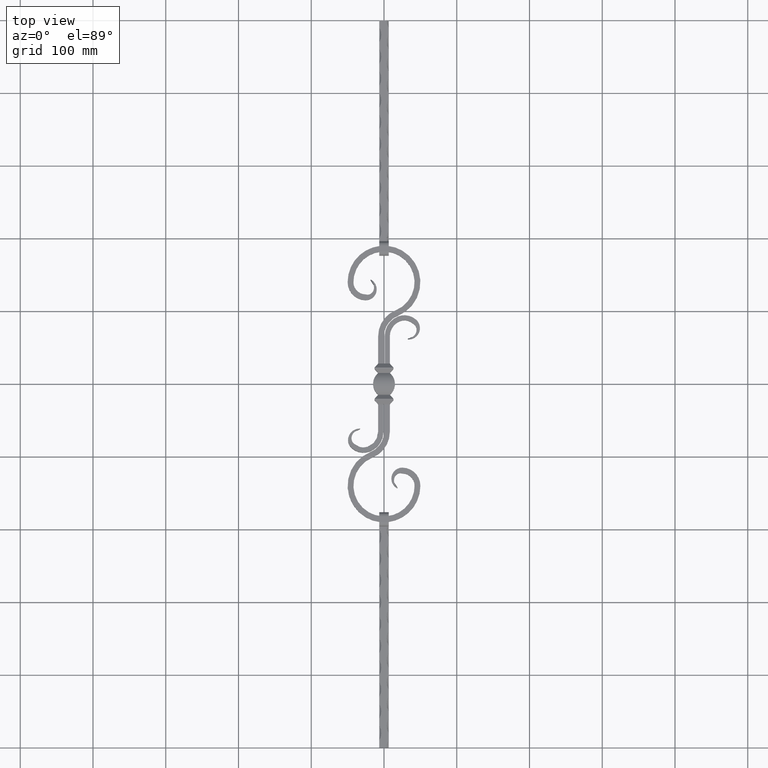
[diagram: clean part render]
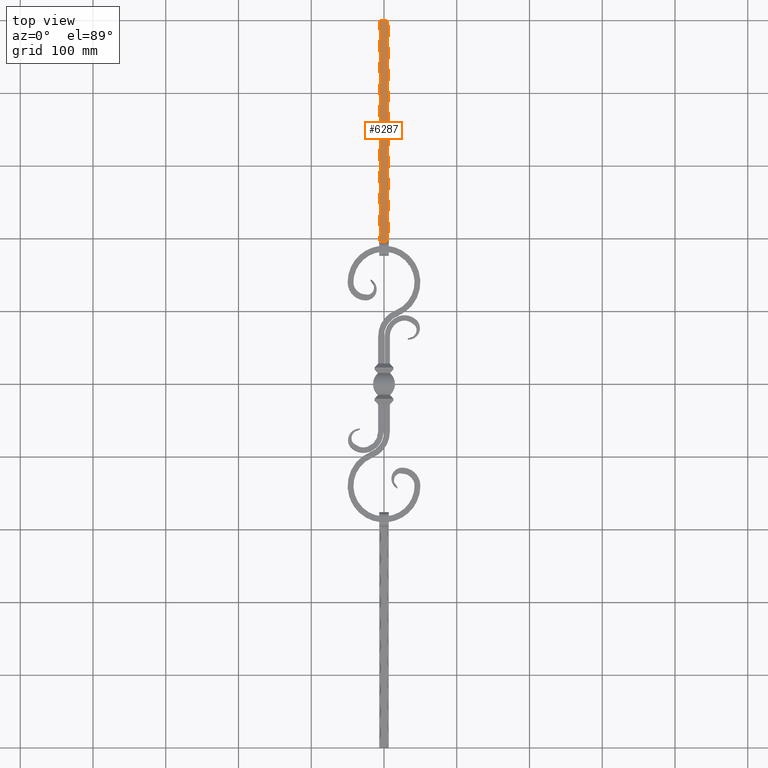
[diagram: same view with one face highlighted and labeled with its STEP entity id]
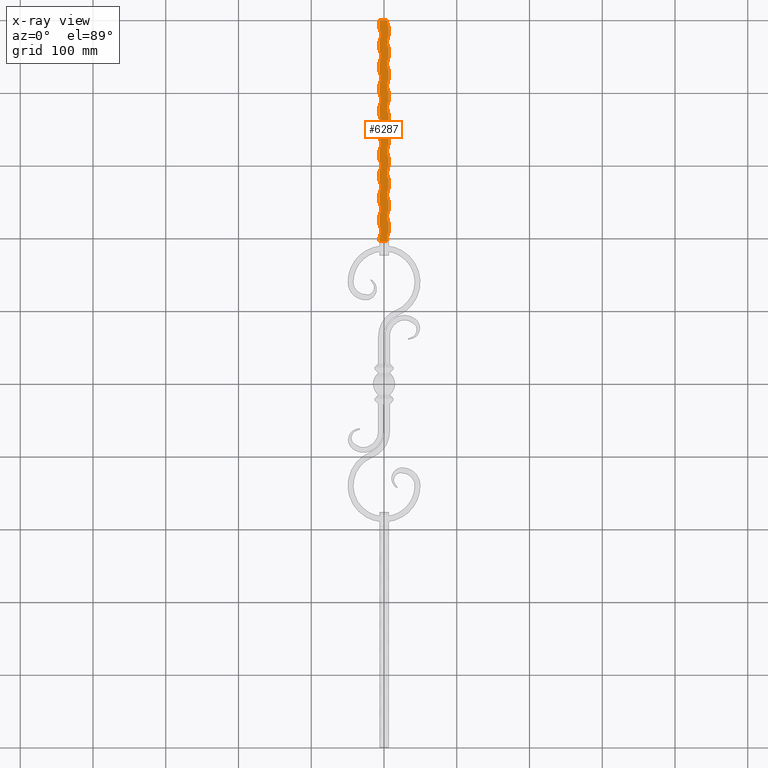
[diagram: x-ray of the same camera — body ghosted, the highlighted face saturated]
A machine part, top view. The second image highlights one B-rep face of the part: STEP entity #6287.
The next image is the same camera in x-ray: the body ghosted, the highlighted face saturated — about 0% of this face is hidden behind the body in this view.
In plain terms, the highlighted planar face has unit normal (0, 0, -1).
Its self-contained STEP definition (entity closure, byte-faithful):
#83 = VECTOR ( 'NONE', #8078, 1000.000000000000000 ) ;
#99 = EDGE_CURVE ( 'NONE', #12868, #7897, #2957, .T. ) ;
#128 = DIRECTION ( 'NONE',  ( -1.000000000000000000, 0.000000000000000000, 0.000000000000000000 ) ) ;
#136 = EDGE_CURVE ( 'NONE', #13893, #7193, #10007, .T. ) ;
#174 = CIRCLE ( 'NONE', #1761, 21.25000000000003197 ) ;
#213 = CARTESIAN_POINT ( 'NONE',  ( 25.25000000000002842, 199.9999999999999432, 6.500000000000000888 ) ) ;
#401 = CARTESIAN_POINT ( 'NONE',  ( -6.499999999999999112, 410.0000000000000000, 6.500000000000000888 ) ) ;
#567 = EDGE_CURVE ( 'NONE', #17401, #8542, #5588, .T. ) ;
#667 = CARTESIAN_POINT ( 'NONE',  ( 6.500000000000000888, 500.0000000000000000, 6.500000000000000888 ) ) ;
#780 = DIRECTION ( 'NONE',  ( -0.000000000000000000, -1.000000000000000000, -0.000000000000000000 ) ) ;
#791 = AXIS2_PLACEMENT_3D ( 'NONE', #14009, #1544, #15507 ) ;
#846 = VERTEX_POINT ( 'NONE', #13466 ) ;
#960 = ORIENTED_EDGE ( 'NONE', *, *, #5816, .T. ) ;
#975 = CARTESIAN_POINT ( 'NONE',  ( -6.499999999999999112, 350.0000000000000000, 6.500000000000000888 ) ) ;
#1040 = CARTESIAN_POINT ( 'NONE',  ( -6.499999999999999112, 500.0000000000000000, 6.500000000000000888 ) ) ;
#1049 = LINE ( 'NONE', #4456, #15667 ) ;
#1134 = DIRECTION ( 'NONE',  ( 0.000000000000000000, 0.000000000000000000, -1.000000000000000000 ) ) ;
#1149 = VERTEX_POINT ( 'NONE', #6142 ) ;
#1171 = DIRECTION ( 'NONE',  ( 0.000000000000000000, 0.000000000000000000, -1.000000000000000000 ) ) ;
#1236 = ORIENTED_EDGE ( 'NONE', *, *, #3574, .T. ) ;
#1241 = VERTEX_POINT ( 'NONE', #15136 ) ;
#1448 = CARTESIAN_POINT ( 'NONE',  ( 6.500000000000000888, 309.9999999999999432, 6.500000000000000888 ) ) ;
#1465 = DIRECTION ( 'NONE',  ( -0.000000000000000000, -1.000000000000000000, -0.000000000000000000 ) ) ;
#1483 = ORIENTED_EDGE ( 'NONE', *, *, #11207, .T. ) ;
#1498 = VERTEX_POINT ( 'NONE', #15806 ) ;
#1532 = DIRECTION ( 'NONE',  ( -0.000000000000000000, -1.000000000000000000, -0.000000000000000000 ) ) ;
#1544 = DIRECTION ( 'NONE',  ( 0.000000000000000000, 0.000000000000000000, -1.000000000000000000 ) ) ;
#1576 = DIRECTION ( 'NONE',  ( -1.000000000000000000, 0.000000000000000000, 0.000000000000000000 ) ) ;
#1584 = ORIENTED_EDGE ( 'NONE', *, *, #2970, .T. ) ;
#1606 = ORIENTED_EDGE ( 'NONE', *, *, #99, .T. ) ;
#1626 = VERTEX_POINT ( 'NONE', #15347 ) ;
#1667 = ORIENTED_EDGE ( 'NONE', *, *, #9790, .T. ) ;
#1727 = CARTESIAN_POINT ( 'NONE',  ( -6.499999999999999112, 290.0000000000000000, 6.500000000000000888 ) ) ;
#1731 = CARTESIAN_POINT ( 'NONE',  ( 6.500000000000000888, 300.0000000000000000, 6.500000000000000888 ) ) ;
#1761 = AXIS2_PLACEMENT_3D ( 'NONE', #4772, #7616, #4833 ) ;
#1773 = DIRECTION ( 'NONE',  ( -1.000000000000000000, 0.000000000000000000, 0.000000000000000000 ) ) ;
#1822 = VERTEX_POINT ( 'NONE', #13053 ) ;
#2011 = VERTEX_POINT ( 'NONE', #2064 ) ;
#2040 = CARTESIAN_POINT ( 'NONE',  ( -6.499999999999999112, 400.0000000000000000, 6.500000000000000888 ) ) ;
#2064 = CARTESIAN_POINT ( 'NONE',  ( 6.500000000000000888, 370.0000000000000000, 6.500000000000000888 ) ) ;
#2126 = AXIS2_PLACEMENT_3D ( 'NONE', #9651, #1171, #11027 ) ;
#2141 = ORIENTED_EDGE ( 'NONE', *, *, #2219, .F. ) ;
#2185 = PLANE ( 'NONE',  #10521 ) ;
#2204 = DIRECTION ( 'NONE',  ( -0.000000000000000000, -1.000000000000000000, -0.000000000000000000 ) ) ;
#2219 = EDGE_CURVE ( 'NONE', #7716, #7897, #6406, .T. ) ;
#2257 = VERTEX_POINT ( 'NONE', #2040 ) ;
#2271 = CARTESIAN_POINT ( 'NONE',  ( -6.499999999999999112, 430.0000000000000000, 6.500000000000000888 ) ) ;
#2289 = ORIENTED_EDGE ( 'NONE', *, *, #5963, .T. ) ;
#2302 = CARTESIAN_POINT ( 'NONE',  ( 6.500000000000000888, 209.9999999999999716, 6.500000000000000888 ) ) ;
#2360 = ORIENTED_EDGE ( 'NONE', *, *, #16480, .T. ) ;
#2367 = EDGE_CURVE ( 'NONE', #3800, #6459, #8178, .T. ) ;
#2457 = DIRECTION ( 'NONE',  ( 0.000000000000000000, 0.000000000000000000, -1.000000000000000000 ) ) ;
#2502 = DIRECTION ( 'NONE',  ( -0.000000000000000000, -1.000000000000000000, -0.000000000000000000 ) ) ;
#2534 = CARTESIAN_POINT ( 'NONE',  ( 4.379865836559640790, 196.0000000000000000, 6.500000000000000888 ) ) ;
#2614 = EDGE_CURVE ( 'NONE', #1822, #17147, #14629, .T. ) ;
#2685 = CARTESIAN_POINT ( 'NONE',  ( 6.500000000000000888, 240.0000000000000000, 6.500000000000000888 ) ) ;
#2782 = EDGE_CURVE ( 'NONE', #13776, #7754, #5972, .T. ) ;
#2846 = EDGE_CURVE ( 'NONE', #12615, #18089, #4640, .T. ) ;
#2957 = CIRCLE ( 'NONE', #12098, 21.25000000000003197 ) ;
#2970 = EDGE_CURVE ( 'NONE', #5331, #13210, #15277, .T. ) ;
#3103 = CARTESIAN_POINT ( 'NONE',  ( -6.499999999999999112, 196.0000000000000000, 6.500000000000000888 ) ) ;
#3149 = VERTEX_POINT ( 'NONE', #13308 ) ;
#3304 = EDGE_CURVE ( 'NONE', #10145, #8542, #3748, .T. ) ;
#3328 = VERTEX_POINT ( 'NONE', #10931 ) ;
#3358 = VECTOR ( 'NONE', #11698, 1000.000000000000000 ) ;
#3367 = VECTOR ( 'NONE', #1465, 1000.000000000000000 ) ;
#3426 = DIRECTION ( 'NONE',  ( -1.000000000000000000, 0.000000000000000000, -0.000000000000000000 ) ) ;
#3443 = LINE ( 'NONE', #13232, #12028 ) ;
#3528 = ORIENTED_EDGE ( 'NONE', *, *, #12379, .F. ) ;
#3533 = DIRECTION ( 'NONE',  ( -0.000000000000000000, -1.000000000000000000, -0.000000000000000000 ) ) ;
#3574 = EDGE_CURVE ( 'NONE', #18277, #12868, #6601, .T. ) ;
#3639 = CARTESIAN_POINT ( 'NONE',  ( -6.499999999999999112, 500.0000000000000000, 6.500000000000000888 ) ) ;
#3740 = CARTESIAN_POINT ( 'NONE',  ( 6.500000000000000888, 399.9999999999999432, 6.500000000000000888 ) ) ;
#3748 = CIRCLE ( 'NONE', #12378, 21.25000000000003197 ) ;
#3778 = CARTESIAN_POINT ( 'NONE',  ( -6.499999999999999112, 500.0000000000000000, 6.500000000000000888 ) ) ;
#3781 = DIRECTION ( 'NONE',  ( -1.000000000000000000, 0.000000000000000000, 0.000000000000000000 ) ) ;
#3800 = VERTEX_POINT ( 'NONE', #3740 ) ;
#3880 = CARTESIAN_POINT ( 'NONE',  ( 25.25000000000002842, 470.0000000000000000, 6.500000000000000888 ) ) ;
#4101 = EDGE_CURVE ( 'NONE', #17147, #13340, #15030, .T. ) ;
#4114 = ORIENTED_EDGE ( 'NONE', *, *, #17225, .F. ) ;
#4179 = VERTEX_POINT ( 'NONE', #16544 ) ;
#4237 = VERTEX_POINT ( 'NONE', #13806 ) ;
#4285 = LINE ( 'NONE', #14098, #6693 ) ;
#4417 = CARTESIAN_POINT ( 'NONE',  ( 25.25000000000002842, 380.0000000000000000, 6.500000000000000888 ) ) ;
#4434 = CARTESIAN_POINT ( 'NONE',  ( -25.25000000000003553, 420.0000000000000000, 6.500000000000000888 ) ) ;
#4448 = CARTESIAN_POINT ( 'NONE',  ( -25.25000000000003553, 480.0000000000000000, 6.500000000000000888 ) ) ;
#4456 = CARTESIAN_POINT ( 'NONE',  ( -6.499999999999999112, 500.0000000000000000, 6.500000000000000888 ) ) ;
#4640 = CIRCLE ( 'NONE', #7286, 21.25000000000003197 ) ;
#4772 = CARTESIAN_POINT ( 'NONE',  ( 25.25000000000002842, 350.0000000000000000, 6.500000000000000888 ) ) ;
#4781 = AXIS2_PLACEMENT_3D ( 'NONE', #16344, #16615, #13818 ) ;
#4833 = DIRECTION ( 'NONE',  ( -1.000000000000000000, 0.000000000000000000, 0.000000000000000000 ) ) ;
#4984 = CARTESIAN_POINT ( 'NONE',  ( -6.499999999999999112, 470.0000000000000000, 6.500000000000000888 ) ) ;
#5052 = AXIS2_PLACEMENT_3D ( 'NONE', #12934, #11383, #1773 ) ;
#5195 = ORIENTED_EDGE ( 'NONE', *, *, #12598, .T. ) ;
#5306 = EDGE_CURVE ( 'NONE', #17207, #846, #14343, .T. ) ;
#5331 = VERTEX_POINT ( 'NONE', #16798 ) ;
#5455 = DIRECTION ( 'NONE',  ( 0.000000000000000000, 0.000000000000000000, -1.000000000000000000 ) ) ;
#5587 = EDGE_LOOP ( 'NONE', ( #1236, #1606, #2141, #9981, #4114, #2360, #7668, #16904, #14474, #11627, #15328, #9508, #15247, #5662, #16998, #10809, #16645, #14417, #3528, #11031, #5948, #6720, #11246, #6314, #5195, #1667, #12210, #11737, #11093, #15768, #7737, #12332, #9028, #12294, #7029, #960, #17767, #9601, #13532, #10046, #9024, #2289, #1584, #1483 ) ) ;
#5588 = LINE ( 'NONE', #16493, #6024 ) ;
#5647 = VERTEX_POINT ( 'NONE', #10466 ) ;
#5662 = ORIENTED_EDGE ( 'NONE', *, *, #7194, .T. ) ;
#5683 = CARTESIAN_POINT ( 'NONE',  ( -25.25000000000003553, 390.0000000000000000, 6.500000000000000888 ) ) ;
#5698 = DIRECTION ( 'NONE',  ( -0.000000000000000000, -1.000000000000000000, -0.000000000000000000 ) ) ;
#5816 = EDGE_CURVE ( 'NONE', #1149, #13893, #8084, .T. ) ;
#5948 = ORIENTED_EDGE ( 'NONE', *, *, #7301, .F. ) ;
#5963 = EDGE_CURVE ( 'NONE', #18089, #5331, #1049, .T. ) ;
#5972 = CIRCLE ( 'NONE', #9537, 21.25000000000003197 ) ;
#6004 = AXIS2_PLACEMENT_3D ( 'NONE', #4448, #11601, #15803 ) ;
#6013 = EDGE_CURVE ( 'NONE', #3800, #3149, #18065, .T. ) ;
#6024 = VECTOR ( 'NONE', #780, 1000.000000000000000 ) ;
#6047 = LINE ( 'NONE', #1040, #11571 ) ;
#6127 = DIRECTION ( 'NONE',  ( -0.000000000000000000, -1.000000000000000000, -0.000000000000000000 ) ) ;
#6142 = CARTESIAN_POINT ( 'NONE',  ( -6.499999999999999112, 319.9999999999999432, 6.500000000000000888 ) ) ;
#6158 = CARTESIAN_POINT ( 'NONE',  ( -6.499999999999999112, 500.0000000000000000, 6.500000000000000888 ) ) ;
#6161 = VERTEX_POINT ( 'NONE', #15305 ) ;
#6192 = CARTESIAN_POINT ( 'NONE',  ( -6.499999999999999112, 500.0000000000000000, 6.500000000000000888 ) ) ;
#6193 = CARTESIAN_POINT ( 'NONE',  ( -25.25000000000003553, 360.0000000000000000, 6.500000000000000888 ) ) ;
#6229 = LINE ( 'NONE', #3778, #83 ) ;
#6255 = DIRECTION ( 'NONE',  ( 0.000000000000000000, 0.000000000000000000, -1.000000000000000000 ) ) ;
#6287 = ADVANCED_FACE ( 'NONE', ( #14084 ), #2185, .F. ) ;
#6314 = ORIENTED_EDGE ( 'NONE', *, *, #14643, .T. ) ;
#6329 = CARTESIAN_POINT ( 'NONE',  ( -6.499999999999999112, 199.9999999999999432, 6.500000000000000888 ) ) ;
#6358 = CARTESIAN_POINT ( 'NONE',  ( -6.499999999999999112, 500.0000000000000000, 6.500000000000000888 ) ) ;
#6406 = LINE ( 'NONE', #11949, #3358 ) ;
#6411 = CARTESIAN_POINT ( 'NONE',  ( -6.499999999999999112, 439.9999999999999432, 6.500000000000000888 ) ) ;
#6459 = VERTEX_POINT ( 'NONE', #7949 ) ;
#6485 = CARTESIAN_POINT ( 'NONE',  ( -6.499999999999999112, 229.9999999999999716, 6.500000000000000888 ) ) ;
#6493 = CIRCLE ( 'NONE', #9001, 21.25000000000003197 ) ;
#6564 = VECTOR ( 'NONE', #15515, 1000.000000000000000 ) ;
#6601 = LINE ( 'NONE', #3103, #17028 ) ;
#6612 = AXIS2_PLACEMENT_3D ( 'NONE', #4417, #15832, #8609 ) ;
#6684 = CARTESIAN_POINT ( 'NONE',  ( 25.25000000000002842, 439.9999999999999432, 6.500000000000000888 ) ) ;
#6693 = VECTOR ( 'NONE', #18226, 1000.000000000000000 ) ;
#6720 = ORIENTED_EDGE ( 'NONE', *, *, #15471, .T. ) ;
#6791 = EDGE_CURVE ( 'NONE', #13340, #16469, #7666, .T. ) ;
#6832 = EDGE_CURVE ( 'NONE', #7716, #14780, #14980, .T. ) ;
#6856 = CARTESIAN_POINT ( 'NONE',  ( -25.25000000000003553, 240.0000000000000000, 6.500000000000000888 ) ) ;
#6868 = VERTEX_POINT ( 'NONE', #4984 ) ;
#7012 = EDGE_CURVE ( 'NONE', #17401, #1626, #16528, .T. ) ;
#7029 = ORIENTED_EDGE ( 'NONE', *, *, #7731, .T. ) ;
#7123 = CIRCLE ( 'NONE', #13871, 21.25000000000003197 ) ;
#7193 = VERTEX_POINT ( 'NONE', #1727 ) ;
#7194 = EDGE_CURVE ( 'NONE', #2011, #3149, #9613, .T. ) ;
#7217 = CARTESIAN_POINT ( 'NONE',  ( -6.500000000000000000, 196.0000000000000000, 6.500000000000000888 ) ) ;
#7286 = AXIS2_PLACEMENT_3D ( 'NONE', #6856, #5455, #15501 ) ;
#7301 = EDGE_CURVE ( 'NONE', #15586, #6161, #18329, .T. ) ;
#7432 = EDGE_CURVE ( 'NONE', #846, #12615, #17498, .T. ) ;
#7519 = CIRCLE ( 'NONE', #14940, 21.25000000000003197 ) ;
#7616 = DIRECTION ( 'NONE',  ( 0.000000000000000000, 0.000000000000000000, -1.000000000000000000 ) ) ;
#7640 = VECTOR ( 'NONE', #17791, 1000.000000000000000 ) ;
#7656 = CARTESIAN_POINT ( 'NONE',  ( -6.499999999999999112, 250.0000000000000000, 6.500000000000000888 ) ) ;
#7666 = LINE ( 'NONE', #3639, #12969 ) ;
#7668 = ORIENTED_EDGE ( 'NONE', *, *, #12653, .F. ) ;
#7687 = DIRECTION ( 'NONE',  ( -0.000000000000000000, -1.000000000000000000, -0.000000000000000000 ) ) ;
#7710 = DIRECTION ( 'NONE',  ( -1.000000000000000000, 0.000000000000000000, 0.000000000000000000 ) ) ;
#7716 = VERTEX_POINT ( 'NONE', #12925 ) ;
#7731 = EDGE_CURVE ( 'NONE', #16469, #1149, #7519, .T. ) ;
#7737 = ORIENTED_EDGE ( 'NONE', *, *, #17406, .T. ) ;
#7754 = VERTEX_POINT ( 'NONE', #6411 ) ;
#7762 = DIRECTION ( 'NONE',  ( -0.000000000000000000, -1.000000000000000000, -0.000000000000000000 ) ) ;
#7897 = VERTEX_POINT ( 'NONE', #2302 ) ;
#7924 = VECTOR ( 'NONE', #13565, 1000.000000000000000 ) ;
#7949 = CARTESIAN_POINT ( 'NONE',  ( 6.500000000000000888, 420.0000000000000000, 6.500000000000000888 ) ) ;
#8025 = CARTESIAN_POINT ( 'NONE',  ( -25.25000000000003553, 449.9999999999999432, 6.500000000000000888 ) ) ;
#8061 = EDGE_CURVE ( 'NONE', #11847, #9061, #13498, .T. ) ;
#8078 = DIRECTION ( 'NONE',  ( 1.000000000000000000, 0.000000000000000000, 0.000000000000000000 ) ) ;
#8084 = LINE ( 'NONE', #17881, #14776 ) ;
#8104 = VECTOR ( 'NONE', #7687, 1000.000000000000000 ) ;
#8178 = CIRCLE ( 'NONE', #791, 21.25000000000003197 ) ;
#8266 = CARTESIAN_POINT ( 'NONE',  ( 25.25000000000002842, 290.0000000000000000, 6.500000000000000888 ) ) ;
#8318 = EDGE_CURVE ( 'NONE', #7193, #17207, #10820, .T. ) ;
#8506 = DIRECTION ( 'NONE',  ( -1.000000000000000000, 0.000000000000000000, 0.000000000000000000 ) ) ;
#8542 = VERTEX_POINT ( 'NONE', #1731 ) ;
#8562 = DIRECTION ( 'NONE',  ( 0.000000000000000000, 0.000000000000000000, -1.000000000000000000 ) ) ;
#8609 = DIRECTION ( 'NONE',  ( -1.000000000000000000, 0.000000000000000000, 0.000000000000000000 ) ) ;
#8670 = CIRCLE ( 'NONE', #12350, 21.25000000000003197 ) ;
#8693 = CIRCLE ( 'NONE', #16463, 21.25000000000003197 ) ;
#8744 = EDGE_CURVE ( 'NONE', #1498, #1626, #17463, .T. ) ;
#8949 = DIRECTION ( 'NONE',  ( -0.000000000000000000, -1.000000000000000000, -0.000000000000000000 ) ) ;
#9001 = AXIS2_PLACEMENT_3D ( 'NONE', #12344, #17758, #13614 ) ;
#9008 = DIRECTION ( 'NONE',  ( -0.000000000000000000, -1.000000000000000000, -0.000000000000000000 ) ) ;
#9024 = ORIENTED_EDGE ( 'NONE', *, *, #2846, .T. ) ;
#9028 = ORIENTED_EDGE ( 'NONE', *, *, #4101, .T. ) ;
#9061 = VERTEX_POINT ( 'NONE', #401 ) ;
#9161 = VECTOR ( 'NONE', #8949, 1000.000000000000000 ) ;
#9356 = CARTESIAN_POINT ( 'NONE',  ( 25.25000000000002842, 229.9999999999999716, 6.500000000000000888 ) ) ;
#9428 = DIRECTION ( 'NONE',  ( 0.000000000000000000, 0.000000000000000000, -1.000000000000000000 ) ) ;
#9479 = CARTESIAN_POINT ( 'NONE',  ( 25.25000000000002842, 319.9999999999999432, 6.500000000000000888 ) ) ;
#9501 = DIRECTION ( 'NONE',  ( -1.000000000000000000, 0.000000000000000000, 0.000000000000000000 ) ) ;
#9508 = ORIENTED_EDGE ( 'NONE', *, *, #10694, .T. ) ;
#9537 = AXIS2_PLACEMENT_3D ( 'NONE', #8025, #12228, #3781 ) ;
#9539 = AXIS2_PLACEMENT_3D ( 'NONE', #6684, #12567, #17957 ) ;
#9595 = VECTOR ( 'NONE', #14550, 1000.000000000000000 ) ;
#9601 = ORIENTED_EDGE ( 'NONE', *, *, #8318, .T. ) ;
#9613 = CIRCLE ( 'NONE', #6612, 21.25000000000003197 ) ;
#9615 = VERTEX_POINT ( 'NONE', #10847 ) ;
#9651 = CARTESIAN_POINT ( 'NONE',  ( -25.25000000000003553, 270.0000000000000000, 6.500000000000000888 ) ) ;
#9743 = LINE ( 'NONE', #15617, #3367 ) ;
#9790 = EDGE_CURVE ( 'NONE', #6868, #13776, #17856, .T. ) ;
#9946 = CARTESIAN_POINT ( 'NONE',  ( 6.500000000000000888, 500.0000000000000000, 6.500000000000000888 ) ) ;
#9981 = ORIENTED_EDGE ( 'NONE', *, *, #6832, .T. ) ;
#10007 = CIRCLE ( 'NONE', #4781, 21.25000000000003197 ) ;
#10046 = ORIENTED_EDGE ( 'NONE', *, *, #7432, .T. ) ;
#10145 = VERTEX_POINT ( 'NONE', #10946 ) ;
#10466 = CARTESIAN_POINT ( 'NONE',  ( 6.500000000000000888, 449.9999999999999432, 6.500000000000000888 ) ) ;
#10515 = DIRECTION ( 'NONE',  ( -1.000000000000000000, 0.000000000000000000, 0.000000000000000000 ) ) ;
#10521 = AXIS2_PLACEMENT_3D ( 'NONE', #6358, #10688, #3426 ) ;
#10666 = CARTESIAN_POINT ( 'NONE',  ( 6.499999999999992895, 490.0000000000000000, 6.500000000000018652 ) ) ;
#10688 = DIRECTION ( 'NONE',  ( 0.000000000000000000, 0.000000000000000000, -1.000000000000000000 ) ) ;
#10694 = EDGE_CURVE ( 'NONE', #1498, #15634, #174, .T. ) ;
#10809 = ORIENTED_EDGE ( 'NONE', *, *, #2367, .T. ) ;
#10820 = LINE ( 'NONE', #6158, #15958 ) ;
#10841 = VECTOR ( 'NONE', #2204, 1000.000000000000000 ) ;
#10847 = CARTESIAN_POINT ( 'NONE',  ( 6.500000000000000888, 429.9999999999999432, 6.500000000000000888 ) ) ;
#10862 = DIRECTION ( 'NONE',  ( -0.000000000000000000, -1.000000000000000000, -0.000000000000000000 ) ) ;
#10931 = CARTESIAN_POINT ( 'NONE',  ( 6.500000000000000888, 270.0000000000000000, 6.500000000000000888 ) ) ;
#10946 = CARTESIAN_POINT ( 'NONE',  ( 6.500000000000000888, 279.9999999999999432, 6.500000000000000888 ) ) ;
#10974 = VECTOR ( 'NONE', #9008, 1000.000000000000000 ) ;
#11027 = DIRECTION ( 'NONE',  ( -1.000000000000000000, 0.000000000000000000, 0.000000000000000000 ) ) ;
#11031 = ORIENTED_EDGE ( 'NONE', *, *, #12820, .T. ) ;
#11093 = ORIENTED_EDGE ( 'NONE', *, *, #8061, .T. ) ;
#11207 = EDGE_CURVE ( 'NONE', #13210, #18277, #15664, .T. ) ;
#11246 = ORIENTED_EDGE ( 'NONE', *, *, #16579, .F. ) ;
#11247 = CARTESIAN_POINT ( 'NONE',  ( -6.499999999999999112, 459.9999999999999432, 6.500000000000000888 ) ) ;
#11294 = EDGE_CURVE ( 'NONE', #7754, #11847, #16308, .T. ) ;
#11383 = DIRECTION ( 'NONE',  ( 0.000000000000000000, 0.000000000000000000, -1.000000000000000000 ) ) ;
#11571 = VECTOR ( 'NONE', #12307, 1000.000000000000000 ) ;
#11594 = CARTESIAN_POINT ( 'NONE',  ( 25.25000000000002132, 500.0000000000000000, 6.500000000000018652 ) ) ;
#11601 = DIRECTION ( 'NONE',  ( 0.000000000000000000, 0.000000000000000000, -1.000000000000000000 ) ) ;
#11627 = ORIENTED_EDGE ( 'NONE', *, *, #7012, .T. ) ;
#11698 = DIRECTION ( 'NONE',  ( -0.000000000000000000, -1.000000000000000000, -0.000000000000000000 ) ) ;
#11709 = VECTOR ( 'NONE', #6127, 1000.000000000000000 ) ;
#11737 = ORIENTED_EDGE ( 'NONE', *, *, #11294, .T. ) ;
#11838 = EDGE_CURVE ( 'NONE', #9615, #5647, #17607, .T. ) ;
#11847 = VERTEX_POINT ( 'NONE', #2271 ) ;
#11857 = CARTESIAN_POINT ( 'NONE',  ( -6.499999999999999112, 310.0000000000000000, 6.500000000000000888 ) ) ;
#11949 = CARTESIAN_POINT ( 'NONE',  ( 6.500000000000000888, 500.0000000000000000, 6.500000000000000888 ) ) ;
#12028 = VECTOR ( 'NONE', #17683, 1000.000000000000000 ) ;
#12098 = AXIS2_PLACEMENT_3D ( 'NONE', #213, #13241, #16111 ) ;
#12210 = ORIENTED_EDGE ( 'NONE', *, *, #2782, .T. ) ;
#12228 = DIRECTION ( 'NONE',  ( 0.000000000000000000, 0.000000000000000000, -1.000000000000000000 ) ) ;
#12282 = EDGE_CURVE ( 'NONE', #9061, #2257, #15844, .T. ) ;
#12294 = ORIENTED_EDGE ( 'NONE', *, *, #6791, .T. ) ;
#12307 = DIRECTION ( 'NONE',  ( -0.000000000000000000, -1.000000000000000000, -0.000000000000000000 ) ) ;
#12309 = CARTESIAN_POINT ( 'NONE',  ( 6.500000000000000888, 249.9999999999999716, 6.500000000000000888 ) ) ;
#12315 = DIRECTION ( 'NONE',  ( -1.000000000000000000, 0.000000000000000000, 0.000000000000000000 ) ) ;
#12332 = ORIENTED_EDGE ( 'NONE', *, *, #2614, .T. ) ;
#12344 = CARTESIAN_POINT ( 'NONE',  ( 25.25000000000002842, 260.0000000000000000, 6.500000000000000888 ) ) ;
#12350 = AXIS2_PLACEMENT_3D ( 'NONE', #5683, #8562, #128 ) ;
#12378 = AXIS2_PLACEMENT_3D ( 'NONE', #8266, #1134, #9501 ) ;
#12379 = EDGE_CURVE ( 'NONE', #17455, #5647, #3443, .T. ) ;
#12567 = DIRECTION ( 'NONE',  ( 0.000000000000000000, 0.000000000000000000, -1.000000000000000000 ) ) ;
#12598 = EDGE_CURVE ( 'NONE', #1241, #6868, #16276, .T. ) ;
#12615 = VERTEX_POINT ( 'NONE', #7656 ) ;
#12653 = EDGE_CURVE ( 'NONE', #10145, #3328, #14046, .T. ) ;
#12820 = EDGE_CURVE ( 'NONE', #17455, #6161, #8693, .T. ) ;
#12868 = VERTEX_POINT ( 'NONE', #2534 ) ;
#12925 = CARTESIAN_POINT ( 'NONE',  ( 6.500000000000000888, 219.9999999999999716, 6.500000000000000888 ) ) ;
#12934 = CARTESIAN_POINT ( 'NONE',  ( -25.25000000000003553, 209.9999999999999716, 6.500000000000000888 ) ) ;
#12969 = VECTOR ( 'NONE', #3533, 1000.000000000000000 ) ;
#13053 = CARTESIAN_POINT ( 'NONE',  ( -6.499999999999999112, 380.0000000000000000, 6.500000000000000888 ) ) ;
#13169 = CARTESIAN_POINT ( 'NONE',  ( 6.500000000000000888, 500.0000000000000000, 6.500000000000000888 ) ) ;
#13210 = VERTEX_POINT ( 'NONE', #6329 ) ;
#13232 = CARTESIAN_POINT ( 'NONE',  ( 6.500000000000000888, 500.0000000000000000, 6.500000000000000888 ) ) ;
#13241 = DIRECTION ( 'NONE',  ( 0.000000000000000000, 0.000000000000000000, -1.000000000000000000 ) ) ;
#13244 = AXIS2_PLACEMENT_3D ( 'NONE', #6193, #6255, #10515 ) ;
#13294 = CARTESIAN_POINT ( 'NONE',  ( -6.499999999999999112, 500.0000000000000000, 6.500000000000000888 ) ) ;
#13308 = CARTESIAN_POINT ( 'NONE',  ( 6.500000000000000888, 390.0000000000000000, 6.500000000000000888 ) ) ;
#13340 = VERTEX_POINT ( 'NONE', #975 ) ;
#13402 = CARTESIAN_POINT ( 'NONE',  ( 6.500000000000000888, 360.0000000000000000, 6.500000000000000888 ) ) ;
#13415 = CARTESIAN_POINT ( 'NONE',  ( -6.499999999999999112, 370.0000000000000000, 6.500000000000000888 ) ) ;
#13466 = CARTESIAN_POINT ( 'NONE',  ( -6.499999999999999112, 260.0000000000000000, 6.500000000000000888 ) ) ;
#13498 = CIRCLE ( 'NONE', #15448, 21.25000000000003197 ) ;
#13532 = ORIENTED_EDGE ( 'NONE', *, *, #5306, .T. ) ;
#13565 = DIRECTION ( 'NONE',  ( -0.000000000000000000, -1.000000000000000000, -0.000000000000000000 ) ) ;
#13586 = DIRECTION ( 'NONE',  ( 0.000000000000000000, 0.000000000000000000, -1.000000000000000000 ) ) ;
#13614 = DIRECTION ( 'NONE',  ( -1.000000000000000000, 0.000000000000000000, 0.000000000000000000 ) ) ;
#13628 = CARTESIAN_POINT ( 'NONE',  ( 6.500000000000000888, 500.0000000000000000, 6.500000000000000888 ) ) ;
#13776 = VERTEX_POINT ( 'NONE', #11247 ) ;
#13806 = CARTESIAN_POINT ( 'NONE',  ( -6.499999999999999112, 500.0000000000000000, 6.500000000000000888 ) ) ;
#13818 = DIRECTION ( 'NONE',  ( -1.000000000000000000, 0.000000000000000000, 0.000000000000000000 ) ) ;
#13871 = AXIS2_PLACEMENT_3D ( 'NONE', #11594, #14360, #1576 ) ;
#13893 = VERTEX_POINT ( 'NONE', #11857 ) ;
#14009 = CARTESIAN_POINT ( 'NONE',  ( 25.25000000000002842, 410.0000000000000000, 6.500000000000000888 ) ) ;
#14046 = LINE ( 'NONE', #13169, #9595 ) ;
#14084 = FACE_OUTER_BOUND ( 'NONE', #5587, .T. ) ;
#14098 = CARTESIAN_POINT ( 'NONE',  ( 6.500000000000000888, 500.0000000000000000, 6.500000000000000888 ) ) ;
#14183 = EDGE_CURVE ( 'NONE', #9615, #6459, #4285, .T. ) ;
#14236 = AXIS2_PLACEMENT_3D ( 'NONE', #9479, #2457, #12315 ) ;
#14326 = VECTOR ( 'NONE', #1532, 1000.000000000000000 ) ;
#14343 = CIRCLE ( 'NONE', #2126, 21.25000000000003197 ) ;
#14353 = CARTESIAN_POINT ( 'NONE',  ( 6.500000000000000888, 459.9999999999999432, 6.500000000000000888 ) ) ;
#14360 = DIRECTION ( 'NONE',  ( 0.000000000000000000, 0.000000000000000000, -1.000000000000000000 ) ) ;
#14417 = ORIENTED_EDGE ( 'NONE', *, *, #11838, .T. ) ;
#14474 = ORIENTED_EDGE ( 'NONE', *, *, #567, .F. ) ;
#14550 = DIRECTION ( 'NONE',  ( -0.000000000000000000, -1.000000000000000000, -0.000000000000000000 ) ) ;
#14558 = CARTESIAN_POINT ( 'NONE',  ( -25.25000000000003553, 329.9999999999999432, 6.500000000000000888 ) ) ;
#14629 = LINE ( 'NONE', #6192, #11709 ) ;
#14643 = EDGE_CURVE ( 'NONE', #4237, #1241, #6047, .T. ) ;
#14776 = VECTOR ( 'NONE', #2502, 1000.000000000000000 ) ;
#14780 = VERTEX_POINT ( 'NONE', #2685 ) ;
#14872 = CARTESIAN_POINT ( 'NONE',  ( -6.499999999999999112, 339.9999999999999432, 6.500000000000000888 ) ) ;
#14888 = CARTESIAN_POINT ( 'NONE',  ( -6.499999999999999112, 500.0000000000000000, 6.500000000000000888 ) ) ;
#14940 = AXIS2_PLACEMENT_3D ( 'NONE', #14558, #15870, #15812 ) ;
#14980 = CIRCLE ( 'NONE', #16592, 21.25000000000003197 ) ;
#15030 = CIRCLE ( 'NONE', #13244, 21.25000000000003197 ) ;
#15136 = CARTESIAN_POINT ( 'NONE',  ( -6.499999999999999112, 490.0000000000000000, 6.500000000000000888 ) ) ;
#15159 = DIRECTION ( 'NONE',  ( -1.000000000000000000, 0.000000000000000000, 0.000000000000000000 ) ) ;
#15247 = ORIENTED_EDGE ( 'NONE', *, *, #18211, .F. ) ;
#15277 = CIRCLE ( 'NONE', #5052, 21.25000000000003197 ) ;
#15305 = CARTESIAN_POINT ( 'NONE',  ( 6.500000000000000888, 480.0000000000000000, 6.500000000000000888 ) ) ;
#15328 = ORIENTED_EDGE ( 'NONE', *, *, #8744, .F. ) ;
#15347 = CARTESIAN_POINT ( 'NONE',  ( 6.500000000000000888, 329.9999999999999432, 6.500000000000000888 ) ) ;
#15448 = AXIS2_PLACEMENT_3D ( 'NONE', #4434, #15600, #8506 ) ;
#15449 = CARTESIAN_POINT ( 'NONE',  ( -6.499999999999999112, 500.0000000000000000, 6.500000000000000888 ) ) ;
#15471 = EDGE_CURVE ( 'NONE', #15586, #4179, #7123, .T. ) ;
#15501 = DIRECTION ( 'NONE',  ( -1.000000000000000000, 0.000000000000000000, 0.000000000000000000 ) ) ;
#15507 = DIRECTION ( 'NONE',  ( -1.000000000000000000, 0.000000000000000000, 0.000000000000000000 ) ) ;
#15515 = DIRECTION ( 'NONE',  ( -0.000000000000000000, -1.000000000000000000, -0.000000000000000000 ) ) ;
#15586 = VERTEX_POINT ( 'NONE', #10666 ) ;
#15600 = DIRECTION ( 'NONE',  ( 0.000000000000000000, 0.000000000000000000, -1.000000000000000000 ) ) ;
#15617 = CARTESIAN_POINT ( 'NONE',  ( 6.500000000000000888, 500.0000000000000000, 6.500000000000000888 ) ) ;
#15634 = VERTEX_POINT ( 'NONE', #13402 ) ;
#15664 = LINE ( 'NONE', #13294, #10974 ) ;
#15667 = VECTOR ( 'NONE', #5698, 1000.000000000000000 ) ;
#15768 = ORIENTED_EDGE ( 'NONE', *, *, #12282, .T. ) ;
#15803 = DIRECTION ( 'NONE',  ( -1.000000000000000000, 0.000000000000000000, 0.000000000000000000 ) ) ;
#15806 = CARTESIAN_POINT ( 'NONE',  ( 6.500000000000000888, 339.9999999999999432, 6.500000000000000888 ) ) ;
#15812 = DIRECTION ( 'NONE',  ( -1.000000000000000000, 0.000000000000000000, 0.000000000000000000 ) ) ;
#15832 = DIRECTION ( 'NONE',  ( 0.000000000000000000, 0.000000000000000000, -1.000000000000000000 ) ) ;
#15844 = LINE ( 'NONE', #17332, #9161 ) ;
#15870 = DIRECTION ( 'NONE',  ( 0.000000000000000000, 0.000000000000000000, -1.000000000000000000 ) ) ;
#15958 = VECTOR ( 'NONE', #7762, 1000.000000000000000 ) ;
#16111 = DIRECTION ( 'NONE',  ( -1.000000000000000000, 0.000000000000000000, 0.000000000000000000 ) ) ;
#16276 = CIRCLE ( 'NONE', #6004, 21.25000000000003197 ) ;
#16308 = LINE ( 'NONE', #16395, #7640 ) ;
#16344 = CARTESIAN_POINT ( 'NONE',  ( -25.25000000000003553, 300.0000000000000000, 6.500000000000000888 ) ) ;
#16395 = CARTESIAN_POINT ( 'NONE',  ( -6.499999999999999112, 500.0000000000000000, 6.500000000000000888 ) ) ;
#16463 = AXIS2_PLACEMENT_3D ( 'NONE', #3880, #9428, #15159 ) ;
#16469 = VERTEX_POINT ( 'NONE', #14872 ) ;
#16480 = EDGE_CURVE ( 'NONE', #17650, #3328, #6493, .T. ) ;
#16493 = CARTESIAN_POINT ( 'NONE',  ( 6.500000000000000888, 500.0000000000000000, 6.500000000000000888 ) ) ;
#16528 = CIRCLE ( 'NONE', #14236, 21.25000000000003197 ) ;
#16544 = CARTESIAN_POINT ( 'NONE',  ( 3.999999999999991562, 500.0000000000000000, 6.500000000000000888 ) ) ;
#16579 = EDGE_CURVE ( 'NONE', #4237, #4179, #6229, .T. ) ;
#16592 = AXIS2_PLACEMENT_3D ( 'NONE', #9356, #13586, #7710 ) ;
#16615 = DIRECTION ( 'NONE',  ( 0.000000000000000000, 0.000000000000000000, -1.000000000000000000 ) ) ;
#16645 = ORIENTED_EDGE ( 'NONE', *, *, #14183, .F. ) ;
#16798 = CARTESIAN_POINT ( 'NONE',  ( -6.499999999999999112, 219.9999999999999716, 6.500000000000000888 ) ) ;
#16904 = ORIENTED_EDGE ( 'NONE', *, *, #3304, .T. ) ;
#16998 = ORIENTED_EDGE ( 'NONE', *, *, #6013, .F. ) ;
#17028 = VECTOR ( 'NONE', #17375, 1000.000000000000000 ) ;
#17147 = VERTEX_POINT ( 'NONE', #13415 ) ;
#17207 = VERTEX_POINT ( 'NONE', #17444 ) ;
#17225 = EDGE_CURVE ( 'NONE', #17650, #14780, #17329, .T. ) ;
#17329 = LINE ( 'NONE', #17628, #17983 ) ;
#17332 = CARTESIAN_POINT ( 'NONE',  ( -6.499999999999999112, 500.0000000000000000, 6.500000000000000888 ) ) ;
#17375 = DIRECTION ( 'NONE',  ( 1.000000000000000000, 0.000000000000000000, 0.000000000000000000 ) ) ;
#17401 = VERTEX_POINT ( 'NONE', #1448 ) ;
#17406 = EDGE_CURVE ( 'NONE', #2257, #1822, #8670, .T. ) ;
#17444 = CARTESIAN_POINT ( 'NONE',  ( -6.499999999999999112, 280.0000000000000000, 6.500000000000000888 ) ) ;
#17455 = VERTEX_POINT ( 'NONE', #14353 ) ;
#17463 = LINE ( 'NONE', #13628, #7924 ) ;
#17498 = LINE ( 'NONE', #14888, #10841 ) ;
#17607 = CIRCLE ( 'NONE', #9539, 21.25000000000003197 ) ;
#17628 = CARTESIAN_POINT ( 'NONE',  ( 6.500000000000000888, 500.0000000000000000, 6.500000000000000888 ) ) ;
#17650 = VERTEX_POINT ( 'NONE', #12309 ) ;
#17683 = DIRECTION ( 'NONE',  ( -0.000000000000000000, -1.000000000000000000, -0.000000000000000000 ) ) ;
#17758 = DIRECTION ( 'NONE',  ( 0.000000000000000000, 0.000000000000000000, -1.000000000000000000 ) ) ;
#17767 = ORIENTED_EDGE ( 'NONE', *, *, #136, .T. ) ;
#17791 = DIRECTION ( 'NONE',  ( -0.000000000000000000, -1.000000000000000000, -0.000000000000000000 ) ) ;
#17856 = LINE ( 'NONE', #15449, #6564 ) ;
#17881 = CARTESIAN_POINT ( 'NONE',  ( -6.499999999999999112, 500.0000000000000000, 6.500000000000000888 ) ) ;
#17957 = DIRECTION ( 'NONE',  ( -1.000000000000000000, 0.000000000000000000, 0.000000000000000000 ) ) ;
#17983 = VECTOR ( 'NONE', #10862, 1000.000000000000000 ) ;
#18065 = LINE ( 'NONE', #9946, #14326 ) ;
#18089 = VERTEX_POINT ( 'NONE', #6485 ) ;
#18211 = EDGE_CURVE ( 'NONE', #2011, #15634, #9743, .T. ) ;
#18226 = DIRECTION ( 'NONE',  ( -0.000000000000000000, -1.000000000000000000, -0.000000000000000000 ) ) ;
#18277 = VERTEX_POINT ( 'NONE', #7217 ) ;
#18329 = LINE ( 'NONE', #667, #8104 ) ;